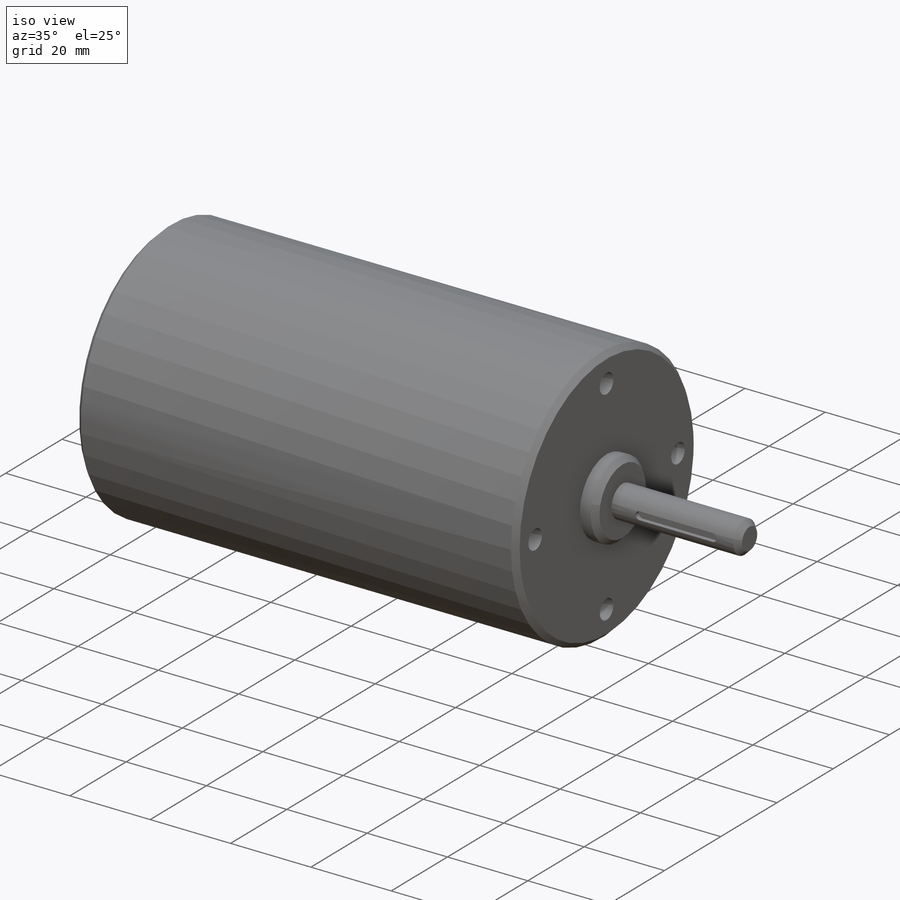
[diagram: iso view]
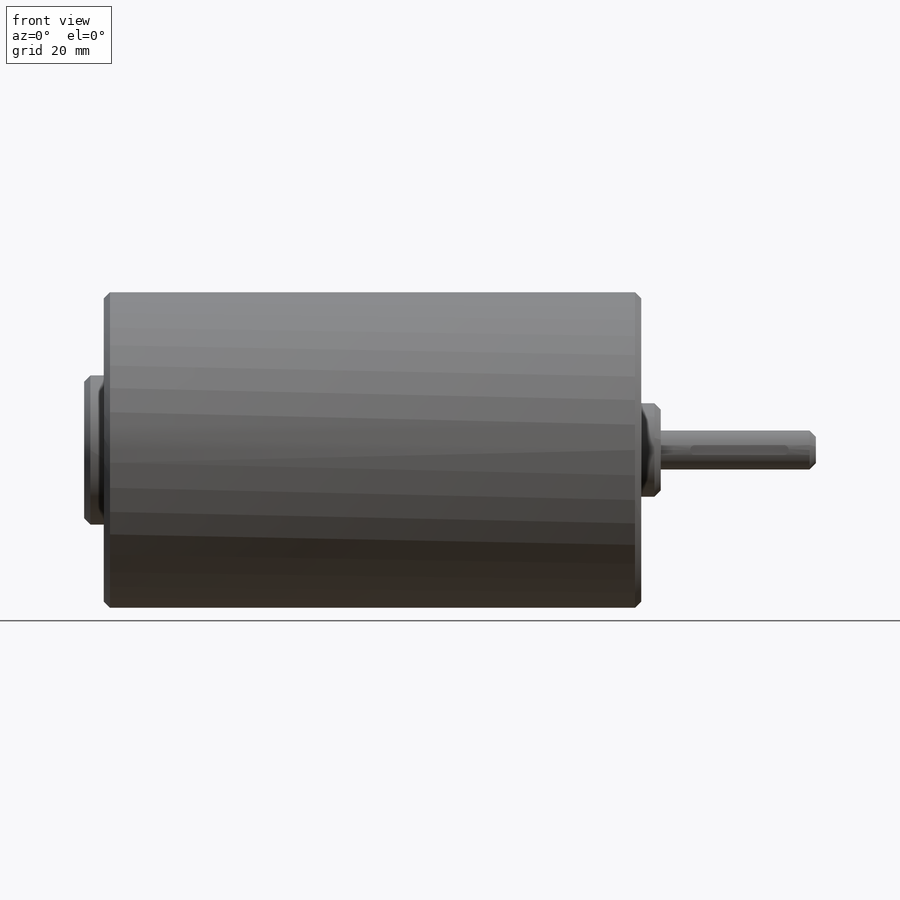
[diagram: front view]
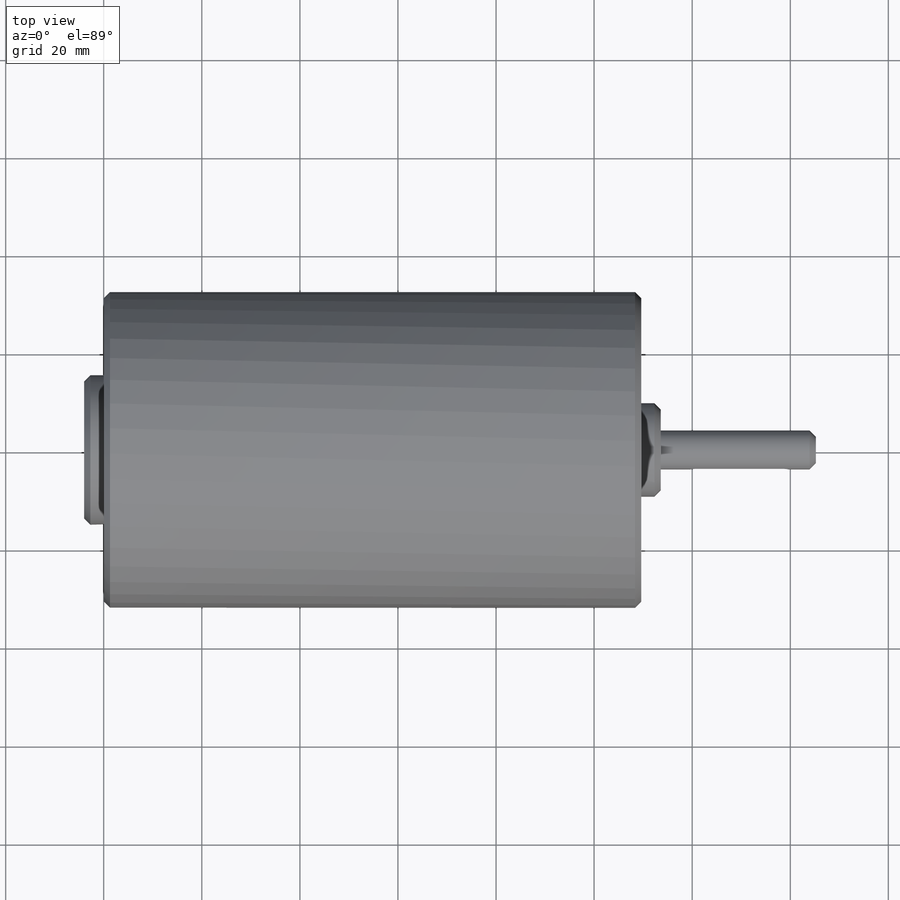
[diagram: top view]
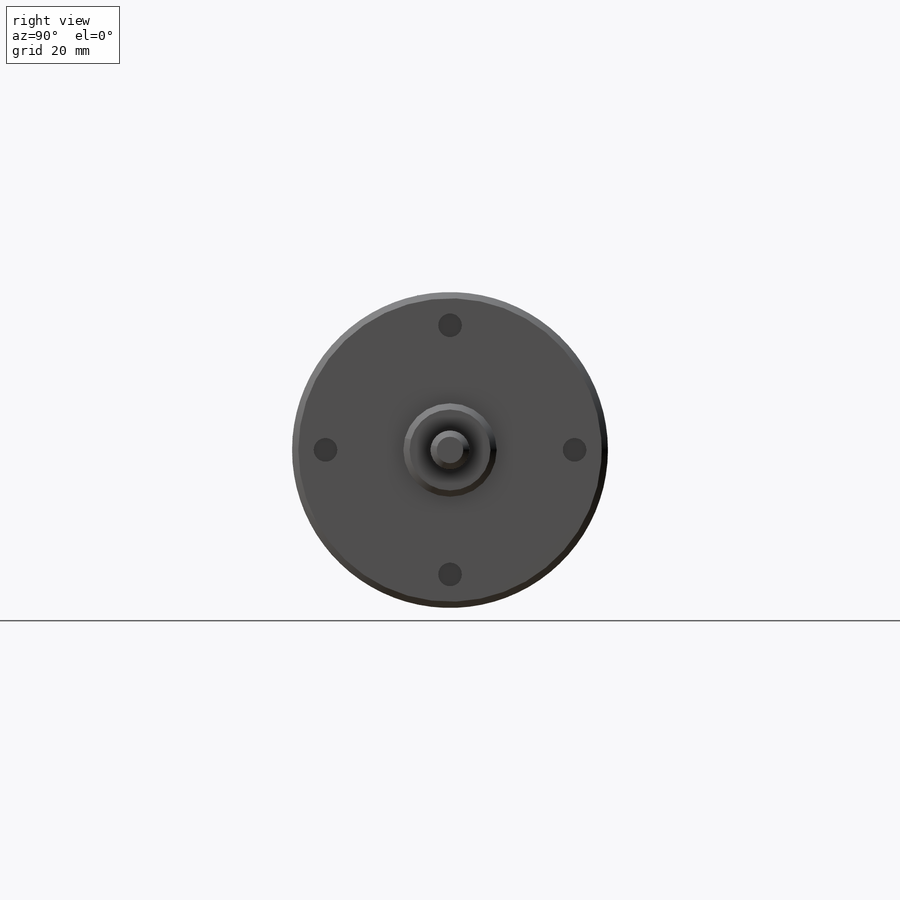
[diagram: right view]
SOLIDWORKS PART (.sldprt)
format: sldprt  version: not decoded by parser v0  size: 238,592 bytes
history: native  units: mm
features: sketch x6, chamfer x5, extrude x4, cut_extrude x2, material x1, plane x1 (+11 scaffold rows collapsed)
feature tree (30):
  scaffold x11  (default folders/planes/origin — collapsed)
  material  "Material <not specified>"
  sketch  "Sketch2"  dims[D1=64.4144mm]
  extrude  "Boss-Extrude1"  Depth=109.601mm
  chamfer  "Chamfer1"  Distance=1.27mm Angle=45deg
  chamfer  "Chamfer2"  Distance=1.27mm Angle=45deg
  sketch  "Sketch3"  dims[D1=19.05mm]
  extrude  "Boss-Extrude2"  Depth=3.9878mm
  sketch  "Sketch4"  dims[D1=7.9375mm]
  extrude  "Boss-Extrude3"  Depth=31.623mm
  chamfer  "Chamfer3"  Distance=1.27mm Angle=45deg
  chamfer  "Chamfer4"  Distance=1.27mm Angle=45deg
  sketch  "Sketch5"  dims[D1=30.48mm]
  extrude  "Boss-Extrude4"  Depth=3.9878mm
  chamfer  "Chamfer5"  Distance=1.27mm Angle=45deg
  plane  "Plane1"
  sketch  "Sketch6"  dims[c1.D2=~0.99949mm c1.D1=~1.99898mm c2.D2=~18.10004mm c2.D3=~6.99389mm]
  cut_extrude  "Cut-Extrude1"  Depth=1.15062mm
  sketch  "Sketch7"  dims[D1=4.826mm D2=25.4mm D3=4.0]
  cut_extrude  "Cut-Extrude2"  Depth=6.35mm
decode coverage: 17 of 17 modeling features carry decoded parameters
note: ~ marks probable driven/reference dimensions
note: suppression state not decoded; provenance and decode notes live in map.json
